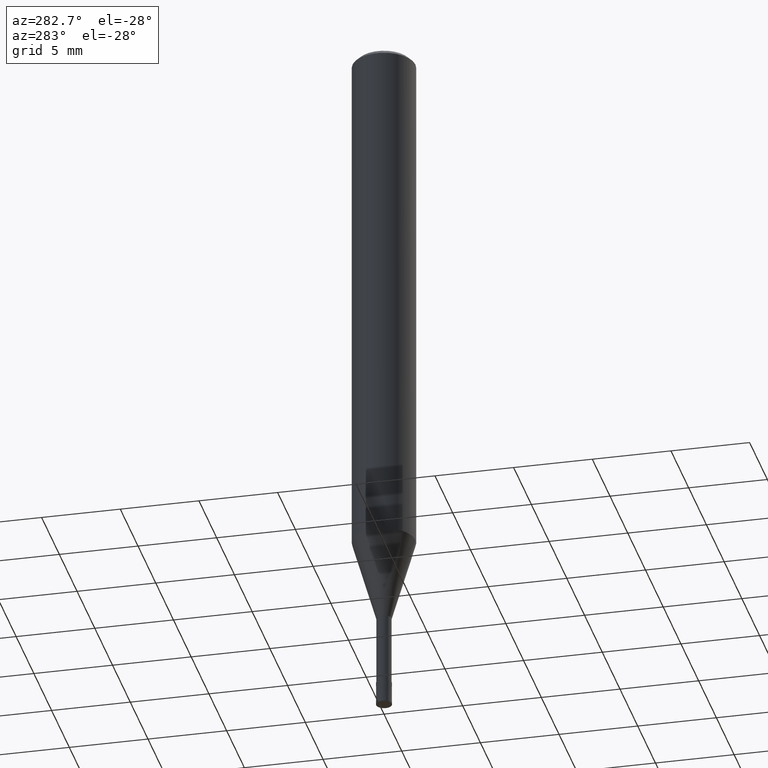
[diagram: clean part render]
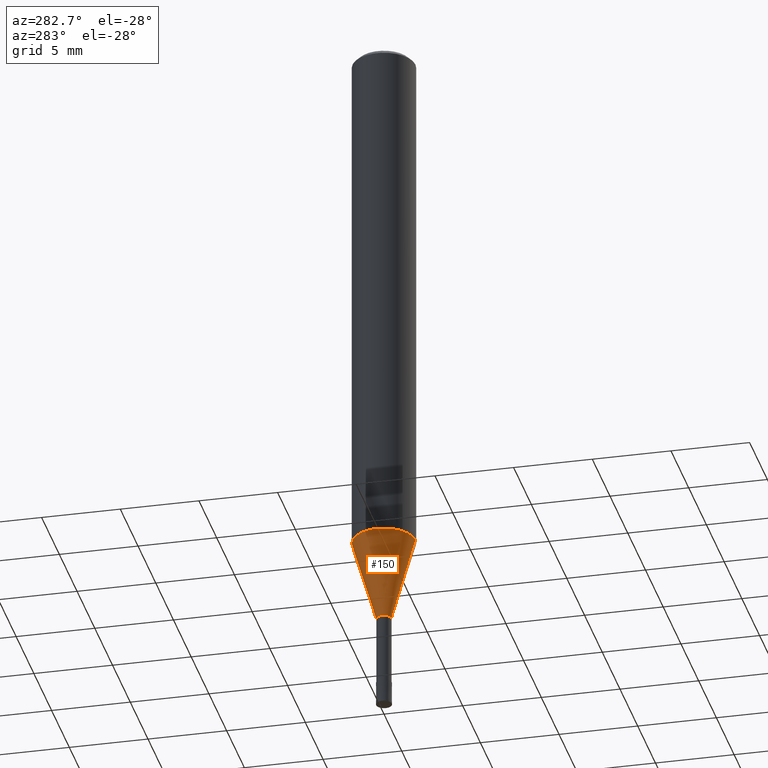
[diagram: same view with one face highlighted and labeled with its STEP entity id]
A machine part, auxiliary view. The second image highlights one B-rep face of the part: STEP entity #150.
In plain terms, the highlighted conical surface has half-angle 16.001 deg.
Its self-contained STEP definition (entity closure, byte-faithful):
#92=VERTEX_POINT('',#229);
#94=EDGE_CURVE('',#98,#148,#231,.T.);
#98=VERTEX_POINT('',#235);
#102=EDGE_CURVE('',#98,#92,#239,.T.);
#148=VERTEX_POINT('',#290);
#150=ADVANCED_FACE('',(#292),#293,.T.);
#154=EDGE_CURVE('',#92,#180,#298,.T.);
#160=EDGE_CURVE('',#180,#148,#305,.T.);
#180=VERTEX_POINT('',#327);
#229=CARTESIAN_POINT('',(2.44915147732706E-016,-1.99995,-33.682));
#231=CIRCLE('',#377,0.47495);
#235=CARTESIAN_POINT('',(5.81626787747938E-017,-0.47495,-39.0));
#239=LINE('',#388,#389);
#290=CARTESIAN_POINT('',(0.0,0.47495,-39.0));
#292=FACE_OUTER_BOUND('',#453,.T.);
#293=CONICAL_SURFACE('',#454,1.23745,0.279267977304115);
#298=CIRCLE('',#460,1.99995);
#305=LINE('',#470,#471);
#327=CARTESIAN_POINT('',(0.0,1.99995,-33.682));
#377=AXIS2_PLACEMENT_3D('',#542,#543,#544);
#388=CARTESIAN_POINT('',(1.5153891325375E-016,-1.23745,-36.341));
#389=VECTOR('',#551,1.0);
#453=EDGE_LOOP('',(#612,#613,#614,#615));
#454=AXIS2_PLACEMENT_3D('',#616,#617,#618);
#460=AXIS2_PLACEMENT_3D('',#625,#626,#627);
#470=CARTESIAN_POINT('',(-1.5153891325375E-016,1.23745,-36.341));
#471=VECTOR('',#637,1.0);
#542=CARTESIAN_POINT('',(0.0,0.0,-39.0));
#543=DIRECTION('',(0.0,0.0,-1.0));
#544=DIRECTION('',(0.0,1.0,0.0));
#551=DIRECTION('',(3.37565264353533E-017,-0.275652060190515,0.961257479405349));
#612=ORIENTED_EDGE('',*,*,#160,.T.);
#613=ORIENTED_EDGE('',*,*,#94,.F.);
#614=ORIENTED_EDGE('',*,*,#102,.T.);
#615=ORIENTED_EDGE('',*,*,#154,.T.);
#616=CARTESIAN_POINT('',(0.0,0.0,-36.341));
#617=DIRECTION('',(-0.0,-0.0,1.0));
#618=DIRECTION('',(0.0,1.0,0.0));
#625=CARTESIAN_POINT('',(0.0,0.0,-33.682));
#626=DIRECTION('',(0.0,0.0,-1.0));
#627=DIRECTION('',(0.0,1.0,0.0));
#637=DIRECTION('',(3.37565264353533E-017,-0.275652060190515,-0.961257479405349));